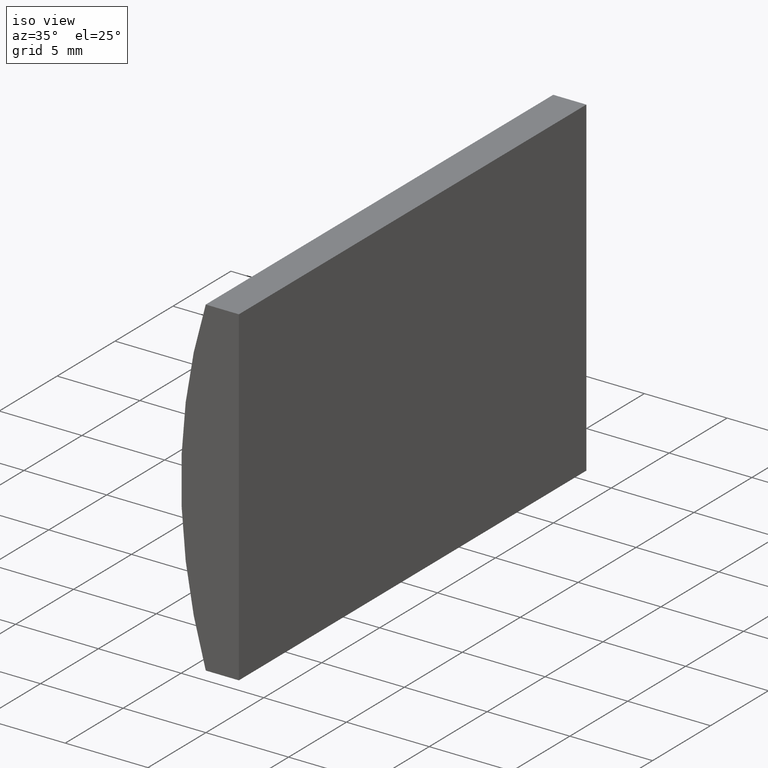
[diagram: clean part render]
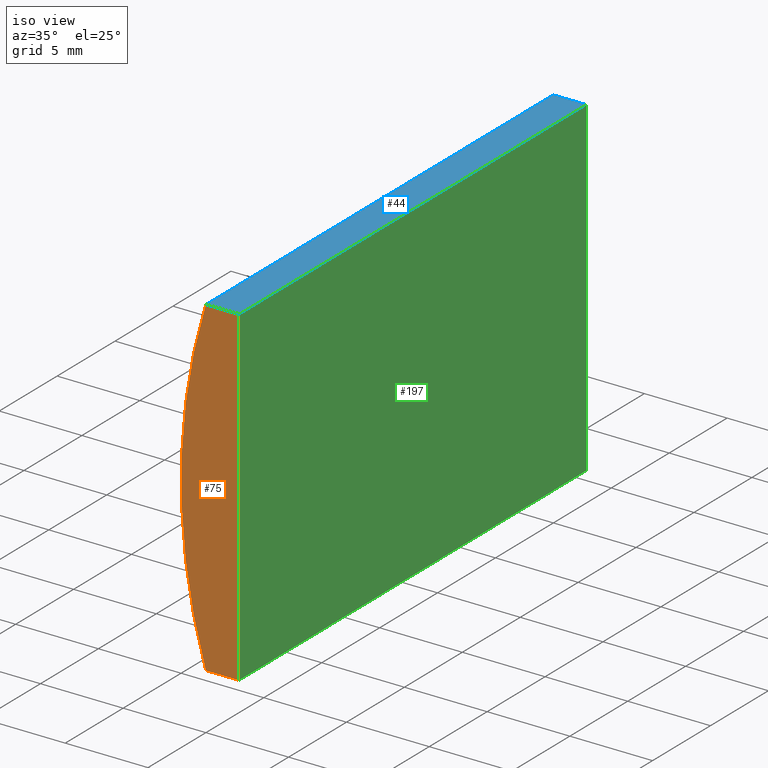
[diagram: same view with three faces highlighted in distinct colors, each labeled with its STEP entity id]
A machine part, iso view with three faces highlighted in distinct colors.
Their STEP definitions:

[orange] entity #75 — the highlighted planar face has unit normal (0, 1, 0).
#3 = CARTESIAN_POINT ( 'NONE',  ( -26.50479566514873000, 0.0000000000000000000, 10.00000000000000000 ) ) ;
#4 = ORIENTED_EDGE ( 'NONE', *, *, #182, .F. ) ;
#12 = EDGE_LOOP ( 'NONE', ( #104, #4, #32, #162 ) ) ;
#24 = PLANE ( 'NONE',  #199 ) ;
#29 = CARTESIAN_POINT ( 'NONE',  ( 4.355204334851265500, 0.0000000000000000000, 4.286263797015675000E-017 ) ) ;
#30 = VECTOR ( 'NONE', #139, 1000.000000000000000 ) ;
#32 = ORIENTED_EDGE ( 'NONE', *, *, #204, .F. ) ;
#36 = DIRECTION ( 'NONE',  ( -1.000000000000000000, -0.0000000000000000000, -0.0000000000000000000 ) ) ;
#37 = DIRECTION ( 'NONE',  ( 0.0000000000000000000, -0.0000000000000000000, 1.000000000000000000 ) ) ;
#40 = CARTESIAN_POINT ( 'NONE',  ( 4.355204334851265500, 0.0000000000000000000, 4.286263797015675000E-017 ) ) ;
#53 = LINE ( 'NONE', #59, #30 ) ;
#56 = EDGE_CURVE ( 'NONE', #100, #178, #148, .T. ) ;
#59 = CARTESIAN_POINT ( 'NONE',  ( -28.50696996935446800, 0.0000000000000000000, 10.00000000000000000 ) ) ;
#61 = CARTESIAN_POINT ( 'NONE',  ( -28.50696996935446800, 0.0000000000000000000, -10.00000000000000000 ) ) ;
#69 = CARTESIAN_POINT ( 'NONE',  ( -28.50696996935446800, 0.0000000000000000000, -10.00000000000000000 ) ) ;
#75 = ADVANCED_FACE ( 'NONE', ( #84 ), #24, .F. ) ;
#82 = LINE ( 'NONE', #151, #168 ) ;
#83 = CARTESIAN_POINT ( 'NONE',  ( -26.50479566514873800, 0.0000000000000000000, -10.00000000000000000 ) ) ;
#84 = FACE_OUTER_BOUND ( 'NONE', #12, .T. ) ;
#100 = VERTEX_POINT ( 'NONE', #61 ) ;
#104 = ORIENTED_EDGE ( 'NONE', *, *, #56, .F. ) ;
#112 = DIRECTION ( 'NONE',  ( 0.0000000000000000000, 1.000000000000000000, 0.0000000000000000000 ) ) ;
#125 = VECTOR ( 'NONE', #36, 1000.000000000000000 ) ;
#130 = CARTESIAN_POINT ( 'NONE',  ( -28.50696996935446800, 0.0000000000000000000, 10.00000000000000000 ) ) ;
#135 = AXIS2_PLACEMENT_3D ( 'NONE', #40, #188, #146 ) ;
#139 = DIRECTION ( 'NONE',  ( 1.000000000000000000, 0.0000000000000000000, 0.0000000000000000000 ) ) ;
#144 = EDGE_CURVE ( 'NONE', #178, #179, #53, .T. ) ;
#146 = DIRECTION ( 'NONE',  ( 0.0000000000000000000, 0.0000000000000000000, 1.000000000000000000 ) ) ;
#147 = VERTEX_POINT ( 'NONE', #83 ) ;
#148 = CIRCLE ( 'NONE', #135, 34.34999999999999400 ) ;
#151 = CARTESIAN_POINT ( 'NONE',  ( -26.50479566514873800, 0.0000000000000000000, -10.00000000000000000 ) ) ;
#162 = ORIENTED_EDGE ( 'NONE', *, *, #144, .F. ) ;
#168 = VECTOR ( 'NONE', #170, 1000.000000000000000 ) ;
#170 = DIRECTION ( 'NONE',  ( -3.469446951953614200E-016, -0.0000000000000000000, -1.000000000000000000 ) ) ;
#178 = VERTEX_POINT ( 'NONE', #130 ) ;
#179 = VERTEX_POINT ( 'NONE', #3 ) ;
#182 = EDGE_CURVE ( 'NONE', #147, #100, #194, .T. ) ;
#188 = DIRECTION ( 'NONE',  ( 0.0000000000000000000, 1.000000000000000000, 0.0000000000000000000 ) ) ;
#194 = LINE ( 'NONE', #69, #125 ) ;
#199 = AXIS2_PLACEMENT_3D ( 'NONE', #29, #112, #37 ) ;
#204 = EDGE_CURVE ( 'NONE', #179, #147, #82, .T. ) ;

[blue] entity #44 — the highlighted planar face has unit normal (0, 0, -1).
#3 = CARTESIAN_POINT ( 'NONE',  ( -26.50479566514873000, 0.0000000000000000000, 10.00000000000000000 ) ) ;
#7 = CARTESIAN_POINT ( 'NONE',  ( -28.50696996935446800, 30.00000000000000000, 10.00000000000000000 ) ) ;
#16 = CARTESIAN_POINT ( 'NONE',  ( -28.50696996935446800, 30.00000000000000000, 10.00000000000000000 ) ) ;
#18 = PLANE ( 'NONE',  #26 ) ;
#25 = VERTEX_POINT ( 'NONE', #63 ) ;
#26 = AXIS2_PLACEMENT_3D ( 'NONE', #7, #51, #92 ) ;
#28 = VECTOR ( 'NONE', #49, 1000.000000000000000 ) ;
#30 = VECTOR ( 'NONE', #139, 1000.000000000000000 ) ;
#44 = ADVANCED_FACE ( 'NONE', ( #138 ), #18, .F. ) ;
#46 = LINE ( 'NONE', #131, #190 ) ;
#49 = DIRECTION ( 'NONE',  ( 1.000000000000000000, 0.0000000000000000000, 0.0000000000000000000 ) ) ;
#51 = DIRECTION ( 'NONE',  ( 0.0000000000000000000, 0.0000000000000000000, -1.000000000000000000 ) ) ;
#53 = LINE ( 'NONE', #59, #30 ) ;
#59 = CARTESIAN_POINT ( 'NONE',  ( -28.50696996935446800, 0.0000000000000000000, 10.00000000000000000 ) ) ;
#63 = CARTESIAN_POINT ( 'NONE',  ( -28.50696996935446800, 30.00000000000000000, 10.00000000000000000 ) ) ;
#66 = EDGE_CURVE ( 'NONE', #153, #179, #46, .T. ) ;
#71 = DIRECTION ( 'NONE',  ( -0.0000000000000000000, -1.000000000000000000, -0.0000000000000000000 ) ) ;
#72 = ORIENTED_EDGE ( 'NONE', *, *, #80, .T. ) ;
#80 = EDGE_CURVE ( 'NONE', #25, #178, #102, .T. ) ;
#92 = DIRECTION ( 'NONE',  ( -1.000000000000000000, 0.0000000000000000000, -0.0000000000000000000 ) ) ;
#95 = EDGE_CURVE ( 'NONE', #25, #153, #119, .T. ) ;
#99 = ORIENTED_EDGE ( 'NONE', *, *, #66, .F. ) ;
#102 = LINE ( 'NONE', #16, #176 ) ;
#105 = ORIENTED_EDGE ( 'NONE', *, *, #144, .T. ) ;
#119 = LINE ( 'NONE', #156, #28 ) ;
#124 = CARTESIAN_POINT ( 'NONE',  ( -26.50479566514873000, 30.00000000000000000, 10.00000000000000000 ) ) ;
#130 = CARTESIAN_POINT ( 'NONE',  ( -28.50696996935446800, 0.0000000000000000000, 10.00000000000000000 ) ) ;
#131 = CARTESIAN_POINT ( 'NONE',  ( -26.50479566514873000, 30.00000000000000000, 10.00000000000000000 ) ) ;
#138 = FACE_OUTER_BOUND ( 'NONE', #184, .T. ) ;
#139 = DIRECTION ( 'NONE',  ( 1.000000000000000000, 0.0000000000000000000, 0.0000000000000000000 ) ) ;
#144 = EDGE_CURVE ( 'NONE', #178, #179, #53, .T. ) ;
#153 = VERTEX_POINT ( 'NONE', #124 ) ;
#156 = CARTESIAN_POINT ( 'NONE',  ( -28.50696996935446800, 30.00000000000000000, 10.00000000000000000 ) ) ;
#164 = DIRECTION ( 'NONE',  ( -0.0000000000000000000, -1.000000000000000000, -0.0000000000000000000 ) ) ;
#167 = ORIENTED_EDGE ( 'NONE', *, *, #95, .F. ) ;
#176 = VECTOR ( 'NONE', #71, 1000.000000000000000 ) ;
#178 = VERTEX_POINT ( 'NONE', #130 ) ;
#179 = VERTEX_POINT ( 'NONE', #3 ) ;
#184 = EDGE_LOOP ( 'NONE', ( #105, #99, #167, #72 ) ) ;
#190 = VECTOR ( 'NONE', #164, 1000.000000000000000 ) ;

[green] entity #197 — the highlighted planar face has unit normal (-1, 0, 0).
#1 = ORIENTED_EDGE ( 'NONE', *, *, #14, .F. ) ;
#3 = CARTESIAN_POINT ( 'NONE',  ( -26.50479566514873000, 0.0000000000000000000, 10.00000000000000000 ) ) ;
#14 = EDGE_CURVE ( 'NONE', #201, #147, #17, .T. ) ;
#17 = LINE ( 'NONE', #145, #58 ) ;
#19 = DIRECTION ( 'NONE',  ( -1.000000000000000000, 0.0000000000000000000, 3.469446951953614200E-016 ) ) ;
#45 = ORIENTED_EDGE ( 'NONE', *, *, #204, .T. ) ;
#46 = LINE ( 'NONE', #131, #190 ) ;
#58 = VECTOR ( 'NONE', #177, 1000.000000000000000 ) ;
#60 = ORIENTED_EDGE ( 'NONE', *, *, #66, .T. ) ;
#66 = EDGE_CURVE ( 'NONE', #153, #179, #46, .T. ) ;
#74 = VECTOR ( 'NONE', #81, 1000.000000000000000 ) ;
#77 = ORIENTED_EDGE ( 'NONE', *, *, #117, .F. ) ;
#81 = DIRECTION ( 'NONE',  ( -3.469446951953614200E-016, -0.0000000000000000000, -1.000000000000000000 ) ) ;
#82 = LINE ( 'NONE', #151, #168 ) ;
#83 = CARTESIAN_POINT ( 'NONE',  ( -26.50479566514873800, 0.0000000000000000000, -10.00000000000000000 ) ) ;
#85 = PLANE ( 'NONE',  #203 ) ;
#87 = EDGE_LOOP ( 'NONE', ( #45, #1, #77, #60 ) ) ;
#91 = FACE_OUTER_BOUND ( 'NONE', #87, .T. ) ;
#117 = EDGE_CURVE ( 'NONE', #153, #201, #200, .T. ) ;
#124 = CARTESIAN_POINT ( 'NONE',  ( -26.50479566514873000, 30.00000000000000000, 10.00000000000000000 ) ) ;
#129 = DIRECTION ( 'NONE',  ( 3.469446951953614200E-016, 0.0000000000000000000, 1.000000000000000000 ) ) ;
#131 = CARTESIAN_POINT ( 'NONE',  ( -26.50479566514873000, 30.00000000000000000, 10.00000000000000000 ) ) ;
#145 = CARTESIAN_POINT ( 'NONE',  ( -26.50479566514873800, 30.00000000000000000, -10.00000000000000000 ) ) ;
#147 = VERTEX_POINT ( 'NONE', #83 ) ;
#150 = CARTESIAN_POINT ( 'NONE',  ( -26.50479566514873800, 30.00000000000000000, -10.00000000000000000 ) ) ;
#151 = CARTESIAN_POINT ( 'NONE',  ( -26.50479566514873800, 0.0000000000000000000, -10.00000000000000000 ) ) ;
#153 = VERTEX_POINT ( 'NONE', #124 ) ;
#154 = CARTESIAN_POINT ( 'NONE',  ( -26.50479566514873800, 30.00000000000000000, -10.00000000000000000 ) ) ;
#164 = DIRECTION ( 'NONE',  ( -0.0000000000000000000, -1.000000000000000000, -0.0000000000000000000 ) ) ;
#168 = VECTOR ( 'NONE', #170, 1000.000000000000000 ) ;
#170 = DIRECTION ( 'NONE',  ( -3.469446951953614200E-016, -0.0000000000000000000, -1.000000000000000000 ) ) ;
#177 = DIRECTION ( 'NONE',  ( -0.0000000000000000000, -1.000000000000000000, -0.0000000000000000000 ) ) ;
#179 = VERTEX_POINT ( 'NONE', #3 ) ;
#180 = CARTESIAN_POINT ( 'NONE',  ( -26.50479566514873800, 30.00000000000000000, -10.00000000000000000 ) ) ;
#190 = VECTOR ( 'NONE', #164, 1000.000000000000000 ) ;
#197 = ADVANCED_FACE ( 'NONE', ( #91 ), #85, .F. ) ;
#200 = LINE ( 'NONE', #180, #74 ) ;
#201 = VERTEX_POINT ( 'NONE', #154 ) ;
#203 = AXIS2_PLACEMENT_3D ( 'NONE', #150, #19, #129 ) ;
#204 = EDGE_CURVE ( 'NONE', #179, #147, #82, .T. ) ;